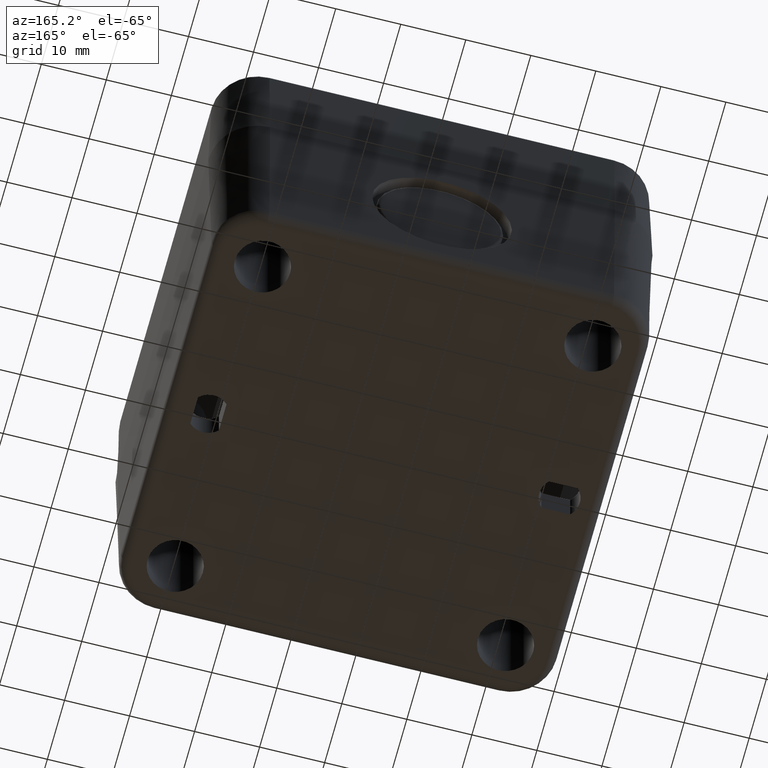
[diagram: clean part render]
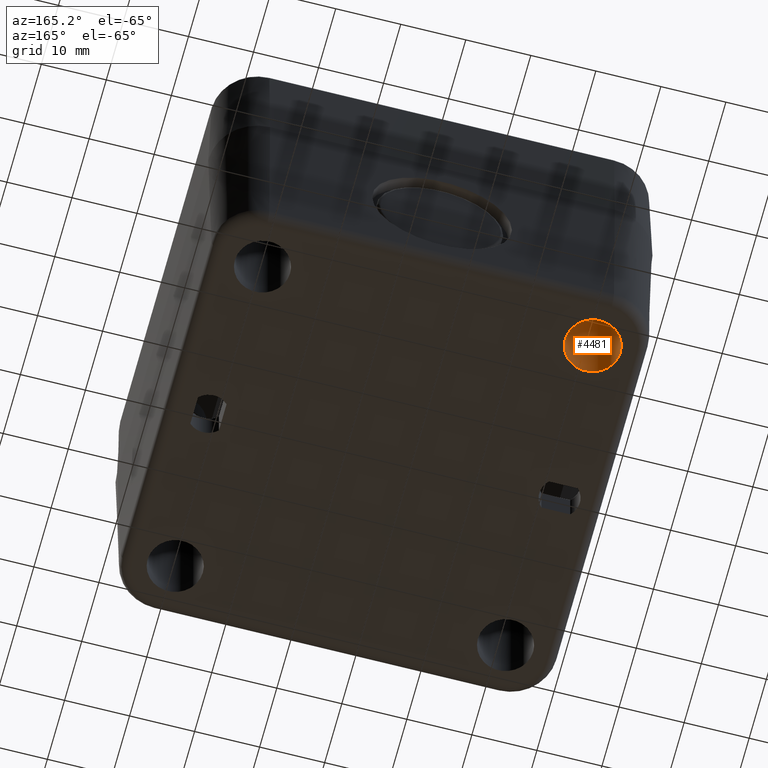
[diagram: same view with one face highlighted and labeled with its STEP entity id]
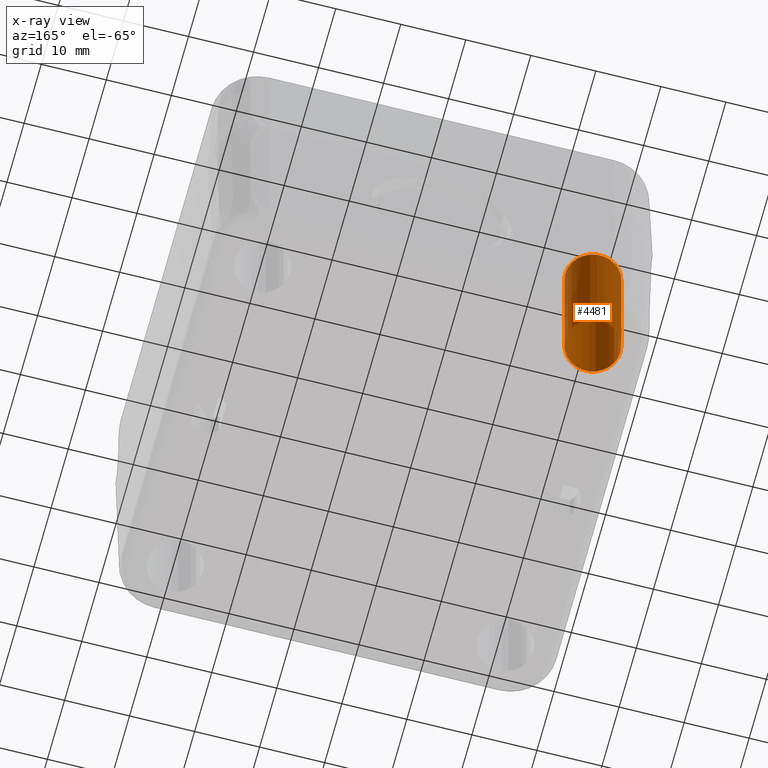
[diagram: x-ray of the same camera — body ghosted, the highlighted face saturated]
A machine part, auxiliary view. The second image highlights one B-rep face of the part: STEP entity #4481.
The next image is the same camera in x-ray: the body ghosted, the highlighted face saturated — about 10% of this face is hidden behind the body in this view.
In plain terms, the highlighted face is a freeform B-spline surface patch.
Its self-contained STEP definition (entity closure, byte-faithful):
#524=CARTESIAN_POINT('',(-45.522549297178536,35.572435103463597,0.0));
#525=VERTEX_POINT('',#524);
#526=CARTESIAN_POINT('',(-41.272549297178536,35.572435103463597,0.0));
#527=DIRECTION('',(0.0,0.0,1.0));
#528=DIRECTION('',(-1.0,0.0,0.0));
#529=AXIS2_PLACEMENT_3D('',#526,#527,#528);
#530=CIRCLE('',#529,4.250000000000000);
#531=EDGE_CURVE('',#525,#525,#530,.T.);
#4426=CARTESIAN_POINT('',(-45.522549297178536,35.572435103463597,23.000000000000004));
#4427=VERTEX_POINT('',#4426);
#4428=CARTESIAN_POINT('',(-41.272549297178536,35.572435103463597,23.000000000000004));
#4429=DIRECTION('',(0.0,0.0,-1.0));
#4430=DIRECTION('',(-1.0,0.0,0.0));
#4431=AXIS2_PLACEMENT_3D('',#4428,#4429,#4430);
#4432=CIRCLE('',#4431,4.250000000000000);
#4433=EDGE_CURVE('',#4427,#4427,#4432,.T.);
#4449=CARTESIAN_POINT('',(-37.022549297178536,35.572435103463597,0.0));
#4450=CARTESIAN_POINT('',(-37.022549297178536,35.572435103463597,23.000000000000004));
#4451=CARTESIAN_POINT('',(-37.022549297178536,31.322435103463597,0.0));
#4452=CARTESIAN_POINT('',(-37.022549297178536,31.322435103463597,23.000000000000004));
#4453=CARTESIAN_POINT('',(-41.272549297178536,31.322435103463597,0.0));
#4454=CARTESIAN_POINT('',(-41.272549297178536,31.322435103463597,23.000000000000004));
#4455=CARTESIAN_POINT('',(-45.522549297178543,31.322435103463597,0.0));
#4456=CARTESIAN_POINT('',(-45.522549297178543,31.322435103463597,23.000000000000004));
#4457=CARTESIAN_POINT('',(-45.522549297178536,35.572435103463597,0.0));
#4458=CARTESIAN_POINT('',(-45.522549297178536,35.572435103463597,23.000000000000004));
#4459=CARTESIAN_POINT('',(-45.522549297178543,39.822435103463597,0.0));
#4460=CARTESIAN_POINT('',(-45.522549297178543,39.822435103463597,23.000000000000004));
#4461=CARTESIAN_POINT('',(-41.272549297178536,39.822435103463597,0.0));
#4462=CARTESIAN_POINT('',(-41.272549297178536,39.822435103463597,23.000000000000004));
#4463=CARTESIAN_POINT('',(-37.022549297178536,39.822435103463597,0.0));
#4464=CARTESIAN_POINT('',(-37.022549297178536,39.822435103463597,23.000000000000004));
#4465=CARTESIAN_POINT('',(-37.022549297178536,35.572435103463597,0.0));
#4466=CARTESIAN_POINT('',(-37.022549297178536,35.572435103463597,23.000000000000004));
#4474=(BOUNDED_SURFACE()B_SPLINE_SURFACE(1,2,((#4449,#4451,#4453,#4455,#4457,#4459,#4461,#4463,#4465),(#4450,#4452,#4454,#4456,#4458,#4460,#4462,#4464,#4466)),.UNSPECIFIED.,.F.,.T.,.U.)B_SPLINE_SURFACE_WITH_KNOTS((2,2),(3,2,2,2,3),(-2.705882352941177,2.705882352941177),(0.0,6.675884388878311,13.351768777756622,20.027653166634931,26.703537555513243),.UNSPECIFIED.)GEOMETRIC_REPRESENTATION_ITEM()RATIONAL_B_SPLINE_SURFACE(((1.0,0.707106781186548,1.0,0.707106781186548,1.0,0.707106781186548,1.0,0.707106781186548,1.0),(1.0,0.707106781186548,1.0,0.707106781186548,1.0,0.707106781186548,1.0,0.707106781186548,1.0)))REPRESENTATION_ITEM('')SURFACE());
#4475=ORIENTED_EDGE('',*,*,#531,.F.);
#4476=EDGE_LOOP('',(#4475));
#4477=FACE_OUTER_BOUND('',#4476,.T.);
#4478=ORIENTED_EDGE('',*,*,#4433,.F.);
#4479=EDGE_LOOP('',(#4478));
#4480=FACE_BOUND('',#4479,.T.);
#4481=ADVANCED_FACE('',(#4477,#4480),#4474,.F.);